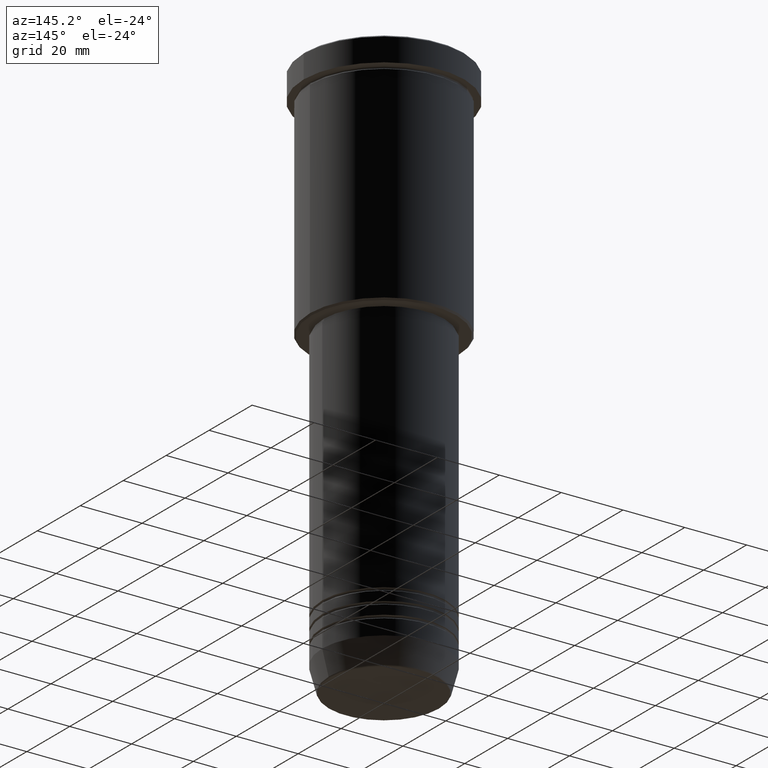
[diagram: clean part render]
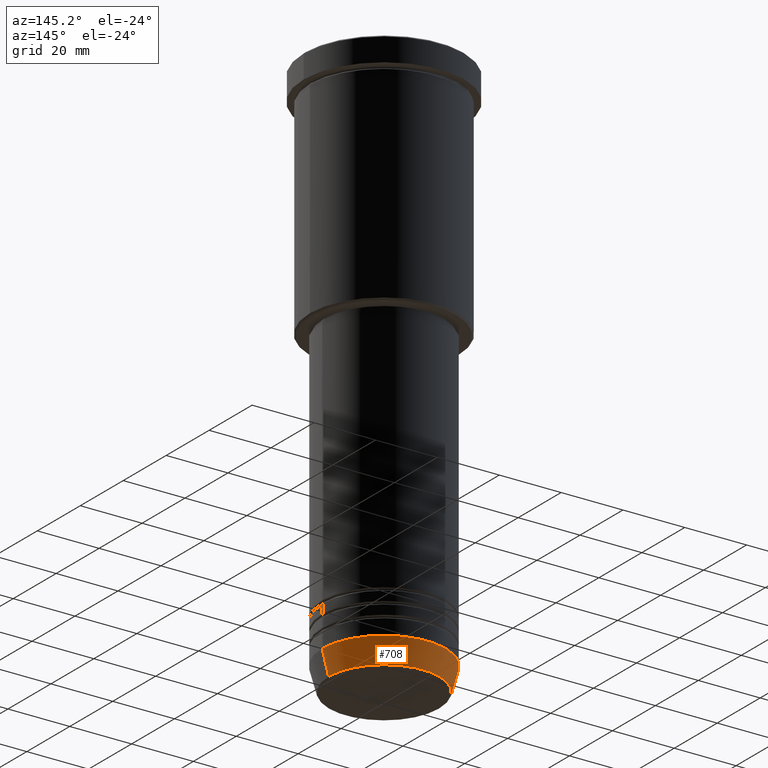
[diagram: same view with one face highlighted and labeled with its STEP entity id]
A machine part, auxiliary view. The second image highlights one B-rep face of the part: STEP entity #708.
In plain terms, the highlighted conical surface has half-angle 15 deg.
Its self-contained STEP definition (entity closure, byte-faithful):
#3 = CARTESIAN_POINT ( 'NONE',  ( 0.000000000000000000, 0.000000000000000000, -172.0000000000000000 ) ) ;
#5 = ORIENTED_EDGE ( 'NONE', *, *, #586, .T. ) ;
#58 = EDGE_CURVE ( 'NONE', #105, #1101, #1109, .T. ) ;
#97 = ORIENTED_EDGE ( 'NONE', *, *, #902, .T. ) ;
#105 = VERTEX_POINT ( 'NONE', #572 ) ;
#154 = AXIS2_PLACEMENT_3D ( 'NONE', #1121, #183, #927 ) ;
#159 = DIRECTION ( 'NONE',  ( 1.000000000000000000, 0.000000000000000000, 0.000000000000000000 ) ) ;
#183 = DIRECTION ( 'NONE',  ( -0.000000000000000000, -0.000000000000000000, 1.000000000000000000 ) ) ;
#195 = CONICAL_SURFACE ( 'NONE', #986, 20.00000000000000355, 0.2617993877991500740 ) ;
#197 = FACE_OUTER_BOUND ( 'NONE', #268, .T. ) ;
#247 = EDGE_CURVE ( 'NONE', #1101, #601, #910, .T. ) ;
#268 = EDGE_LOOP ( 'NONE', ( #97, #5, #1061, #997 ) ) ;
#439 = DIRECTION ( 'NONE',  ( 1.000000000000000000, 0.000000000000000000, 0.000000000000000000 ) ) ;
#456 = LINE ( 'NONE', #468, #972 ) ;
#468 = CARTESIAN_POINT ( 'NONE',  ( -20.00000000000000355, 2.449293598294706907E-15, -172.0000000000000000 ) ) ;
#470 = CARTESIAN_POINT ( 'NONE',  ( -17.95570587970607690, 2.324116685748021371E-15, -179.6294095225512706 ) ) ;
#554 = CARTESIAN_POINT ( 'NONE',  ( 0.000000000000000000, 0.000000000000000000, -172.0000000000000000 ) ) ;
#563 = DIRECTION ( 'NONE',  ( 0.2588190451025213501, 0.000000000000000000, 0.9659258262890680902 ) ) ;
#572 = CARTESIAN_POINT ( 'NONE',  ( 17.95570587970607690, 0.000000000000000000, -179.6294095225512706 ) ) ;
#586 = EDGE_CURVE ( 'NONE', #671, #601, #456, .T. ) ;
#601 = VERTEX_POINT ( 'NONE', #638 ) ;
#638 = CARTESIAN_POINT ( 'NONE',  ( -20.00000000000000355, 2.449293598294706907E-15, -172.0000000000000000 ) ) ;
#647 = DIRECTION ( 'NONE',  ( -0.000000000000000000, -0.000000000000000000, 1.000000000000000000 ) ) ;
#671 = VERTEX_POINT ( 'NONE', #470 ) ;
#708 = ADVANCED_FACE ( 'NONE', ( #197 ), #195, .T. ) ;
#810 = DIRECTION ( 'NONE',  ( -0.000000000000000000, -0.000000000000000000, 1.000000000000000000 ) ) ;
#817 = AXIS2_PLACEMENT_3D ( 'NONE', #554, #810, #439 ) ;
#819 = CIRCLE ( 'NONE', #154, 17.95570587970607690 ) ;
#902 = EDGE_CURVE ( 'NONE', #105, #671, #819, .T. ) ;
#910 = CIRCLE ( 'NONE', #817, 20.00000000000000355 ) ;
#926 = CARTESIAN_POINT ( 'NONE',  ( 20.00000000000000355, 0.000000000000000000, -172.0000000000000000 ) ) ;
#927 = DIRECTION ( 'NONE',  ( 1.000000000000000000, 0.000000000000000000, 0.000000000000000000 ) ) ;
#972 = VECTOR ( 'NONE', #1011, 1000.000000000000000 ) ;
#986 = AXIS2_PLACEMENT_3D ( 'NONE', #3, #647, #159 ) ;
#997 = ORIENTED_EDGE ( 'NONE', *, *, #58, .F. ) ;
#1011 = DIRECTION ( 'NONE',  ( -0.2588190451025213501, 3.169619151431772337E-17, 0.9659258262890680902 ) ) ;
#1056 = CARTESIAN_POINT ( 'NONE',  ( 20.00000000000000355, 0.000000000000000000, -172.0000000000000000 ) ) ;
#1061 = ORIENTED_EDGE ( 'NONE', *, *, #247, .F. ) ;
#1066 = VECTOR ( 'NONE', #563, 1000.000000000000000 ) ;
#1101 = VERTEX_POINT ( 'NONE', #1056 ) ;
#1109 = LINE ( 'NONE', #926, #1066 ) ;
#1121 = CARTESIAN_POINT ( 'NONE',  ( 0.000000000000000000, 0.000000000000000000, -179.6294095225512706 ) ) ;